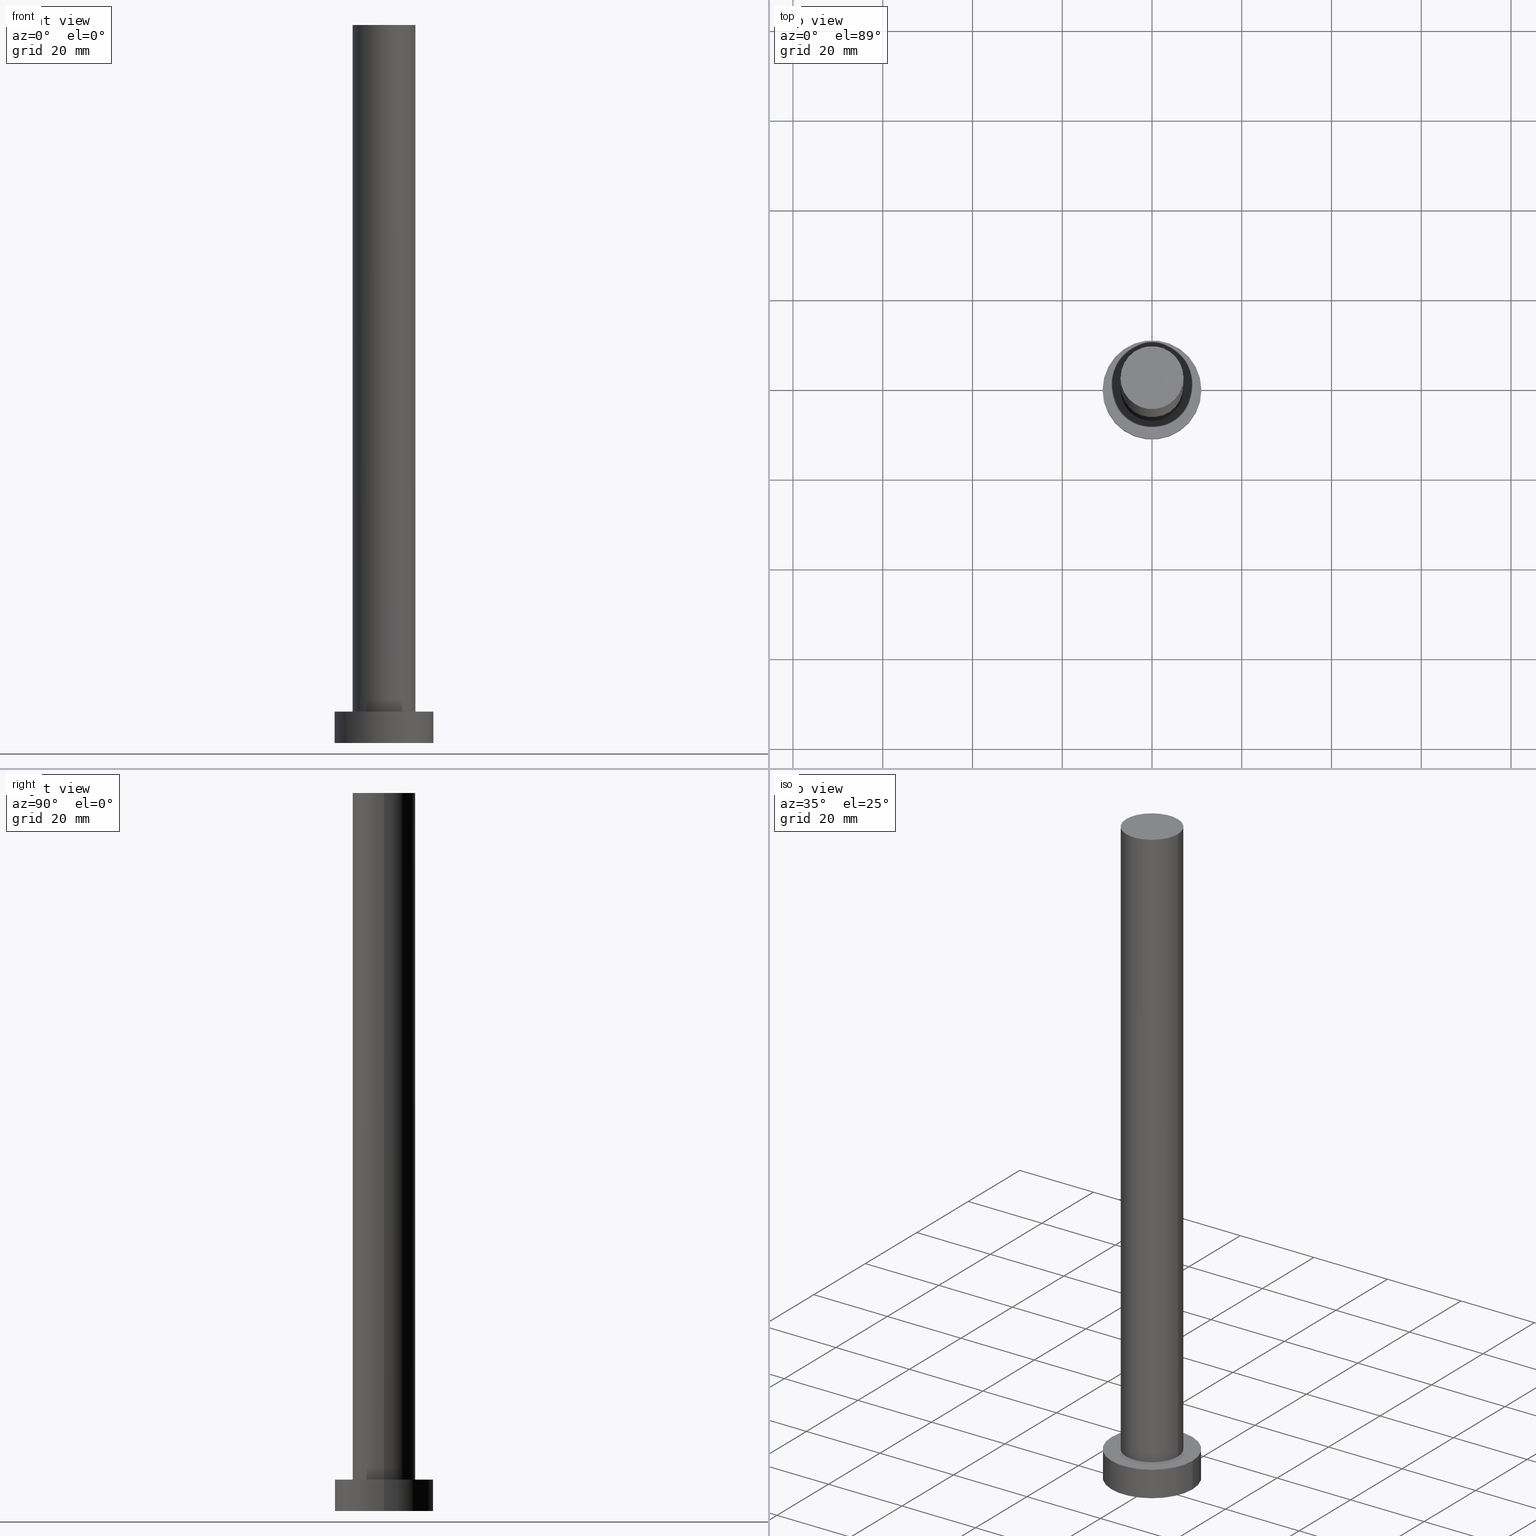
[diagram: canonical four-view strip — front | top / right | iso, engineering-drawing reading convention]
A machine part, canonical four-view strip (front | top / right | iso — engineering-drawing reading convention). The complete STEP part file that produces these views, byte-faithful:
ISO-10303-21;
HEADER;
FILE_DESCRIPTION (( 'STEP AP203' ),
    '1' );
FILE_NAME ('aa4a.STEP',
    '2023-02-13T08:55:26',
    ( '' ),
    ( '' ),
    'SwSTEP 2.0',
    'SolidWorks 2019',
    '' );
FILE_SCHEMA (( 'CONFIG_CONTROL_DESIGN' ));
ENDSEC;

DATA;
#1 = DATE_AND_TIME ( #110, #46 ) ;
#2 = DIRECTION ( 'NONE',  ( 1.000000000000000000, 0.000000000000000000, 0.000000000000000000 ) ) ;
#3 = VECTOR ( 'NONE', #16, 1000.000000000000000 ) ;
#4 = ADVANCED_FACE ( 'NONE', ( #176 ), #85, .T. ) ;
#5 = DATE_AND_TIME ( #169, #114 ) ;
#6 = ORIENTED_EDGE ( 'NONE', *, *, #9, .F. ) ;
#7 = EDGE_LOOP ( 'NONE', ( #249, #191, #45, #226 ) ) ;
#8 = AXIS2_PLACEMENT_3D ( 'NONE', #107, #182, #251 ) ;
#9 = EDGE_CURVE ( 'NONE', #246, #69, #33, .T. ) ;
#10 = PERSON_AND_ORGANIZATION ( #240, #56 ) ;
#11 = ORIENTED_EDGE ( 'NONE', *, *, #62, .F. ) ;
#12 = VERTEX_POINT ( 'NONE', #43 ) ;
#13 = DIRECTION ( 'NONE',  ( -1.000000000000000000, 0.000000000000000000, 0.000000000000000000 ) ) ;
#14 = CIRCLE ( 'NONE', #189, 11.00000000000000000 ) ;
#15 = PLANE ( 'NONE',  #66 ) ;
#16 = DIRECTION ( 'NONE',  ( -0.000000000000000000, -0.000000000000000000, -1.000000000000000000 ) ) ;
#17 = PERSON_AND_ORGANIZATION ( #240, #56 ) ;
#18 = FACE_OUTER_BOUND ( 'NONE', #203, .T. ) ;
#19 = DIRECTION ( 'NONE',  ( -1.000000000000000000, 0.000000000000000000, 0.000000000000000000 ) ) ;
#20 = ADVANCED_FACE ( 'NONE', ( #207 ), #30, .T. ) ;
#21 = DATE_AND_TIME ( #149, #230 ) ;
#22 = DIRECTION ( 'NONE',  ( 0.000000000000000000, 0.000000000000000000, 1.000000000000000000 ) ) ;
#23 = AXIS2_PLACEMENT_3D ( 'NONE', #118, #96, #219 ) ;
#24 = CARTESIAN_POINT ( 'NONE',  ( 0.000000000000000000, 0.000000000000000000, 7.000000000000000000 ) ) ;
#25 = VERTEX_POINT ( 'NONE', #214 ) ;
#26 = APPROVAL_PERSON_ORGANIZATION ( #172, #63, #139 ) ;
#27 = ORIENTED_EDGE ( 'NONE', *, *, #215, .F. ) ;
#28 = SECURITY_CLASSIFICATION ( '', '', #233 ) ;
#29 = EDGE_CURVE ( 'NONE', #88, #229, #158, .T. ) ;
#30 = CYLINDRICAL_SURFACE ( 'NONE', #8, 7.000000000000000888 ) ;
#31 = PERSON_AND_ORGANIZATION_ROLE ( 'design_supplier' ) ;
#32 = DIRECTION ( 'NONE',  ( 1.000000000000000000, 0.000000000000000000, -0.000000000000000000 ) ) ;
#33 = CIRCLE ( 'NONE', #167, 11.00000000000000000 ) ;
#34 = FACE_BOUND ( 'NONE', #141, .T. ) ;
#35 = CARTESIAN_POINT ( 'NONE',  ( 0.000000000000000000, 0.000000000000000000, 0.000000000000000000 ) ) ;
#36 = DIRECTION ( 'NONE',  ( 1.000000000000000000, 0.000000000000000000, 0.000000000000000000 ) ) ;
#37 = MECHANICAL_CONTEXT ( 'NONE', #161, 'mechanical' ) ;
#38 = DATE_AND_TIME ( #142, #199 ) ;
#39 = CARTESIAN_POINT ( 'NONE',  ( 0.000000000000000000, 0.000000000000000000, 160.0000000000000000 ) ) ;
#40 = CC_DESIGN_SECURITY_CLASSIFICATION ( #28, ( #248 ) ) ;
#41 = CARTESIAN_POINT ( 'NONE',  ( 0.000000000000000000, 0.000000000000000000, 0.000000000000000000 ) ) ;
#42 = ADVANCED_FACE ( 'NONE', ( #18 ), #179, .T. ) ;
#43 = CARTESIAN_POINT ( 'NONE',  ( 7.000000000000000888, 8.572527594031474176E-16, 7.000000000000000000 ) ) ;
#44 = CALENDAR_DATE ( 2023, 13, 2 ) ;
#45 = ORIENTED_EDGE ( 'NONE', *, *, #55, .T. ) ;
#46 = LOCAL_TIME ( 9, 55, 26.00000000000000000, #156 ) ;
#47 = CARTESIAN_POINT ( 'NONE',  ( 0.000000000000000000, 0.000000000000000000, 7.000000000000000000 ) ) ;
#48 = DIRECTION ( 'NONE',  ( 0.000000000000000000, 0.000000000000000000, 1.000000000000000000 ) ) ;
#49 = LINE ( 'NONE', #160, #86 ) ;
#50 = AXIS2_PLACEMENT_3D ( 'NONE', #39, #123, #228 ) ;
#51 = DIRECTION ( 'NONE',  ( 1.000000000000000000, 0.000000000000000000, -0.000000000000000000 ) ) ;
#52 = DIRECTION ( 'NONE',  ( 0.000000000000000000, 0.000000000000000000, 1.000000000000000000 ) ) ;
#53 = CARTESIAN_POINT ( 'NONE',  ( 7.000000000000000888, 8.572527594031474176E-16, 160.0000000000000000 ) ) ;
#54 = AXIS2_PLACEMENT_3D ( 'NONE', #157, #48, #36 ) ;
#55 = EDGE_CURVE ( 'NONE', #88, #25, #73, .T. ) ;
#56 = ORGANIZATION ( 'NEUR�EN�', 'NEUR�EN�', '' ) ;
#57 =( NAMED_UNIT ( * ) PLANE_ANGLE_UNIT ( ) SI_UNIT ( $, .RADIAN. ) );
#58 = AXIS2_PLACEMENT_3D ( 'NONE', #93, #211, #51 ) ;
#59 = APPROVAL_STATUS ( 'not_yet_approved' ) ;
#60 = ORIENTED_EDGE ( 'NONE', *, *, #137, .T. ) ;
#61 = ORIENTED_EDGE ( 'NONE', *, *, #180, .F. ) ;
#62 = EDGE_CURVE ( 'NONE', #83, #87, #212, .T. ) ;
#63 = APPROVAL ( #247, 'NEUR�EN�' ) ;
#64 = AXIS2_PLACEMENT_3D ( 'NONE', #47, #231, #13 ) ;
#65 = ORIENTED_EDGE ( 'NONE', *, *, #243, .T. ) ;
#66 = AXIS2_PLACEMENT_3D ( 'NONE', #197, #132, #32 ) ;
#67 = APPROVAL_STATUS ( 'not_yet_approved' ) ;
#68 = DIRECTION ( 'NONE',  ( 0.000000000000000000, 0.000000000000000000, 1.000000000000000000 ) ) ;
#69 = VERTEX_POINT ( 'NONE', #128 ) ;
#70 = CARTESIAN_POINT ( 'NONE',  ( 0.000000000000000000, 0.000000000000000000, 0.000000000000000000 ) ) ;
#71 = CIRCLE ( 'NONE', #236, 7.000000000000000888 ) ;
#72 = AXIS2_PLACEMENT_3D ( 'NONE', #70, #192, #109 ) ;
#73 = LINE ( 'NONE', #75, #3 ) ;
#74 = CARTESIAN_POINT ( 'NONE',  ( 0.000000000000000000, 0.000000000000000000, 7.000000000000000000 ) ) ;
#75 = CARTESIAN_POINT ( 'NONE',  ( -7.000000000000000888, 0.000000000000000000, 160.0000000000000000 ) ) ;
#76 = PERSON_AND_ORGANIZATION ( #240, #56 ) ;
#77 = DIRECTION ( 'NONE',  ( 1.000000000000000000, 0.000000000000000000, 0.000000000000000000 ) ) ;
#78 = PRODUCT ( 'aa4a', 'aa4a', '', ( #37 ) ) ;
#79 = APPROVAL ( #59, 'NEUR�EN�' ) ;
#80 =( LENGTH_UNIT ( ) NAMED_UNIT ( * ) SI_UNIT ( .MILLI., .METRE. ) );
#81 = EDGE_CURVE ( 'NONE', #229, #12, #49, .T. ) ;
#82 = VECTOR ( 'NONE', #95, 1000.000000000000000 ) ;
#83 = VERTEX_POINT ( 'NONE', #154 ) ;
#84 = APPROVAL_DATE_TIME ( #38, #79 ) ;
#85 = CYLINDRICAL_SURFACE ( 'NONE', #50, 7.000000000000000888 ) ;
#86 = VECTOR ( 'NONE', #194, 1000.000000000000000 ) ;
#87 = VERTEX_POINT ( 'NONE', #183 ) ;
#88 = VERTEX_POINT ( 'NONE', #232 ) ;
#89 = CARTESIAN_POINT ( 'NONE',  ( 0.000000000000000000, 0.000000000000000000, 160.0000000000000000 ) ) ;
#90 = DIRECTION ( 'NONE',  ( 1.000000000000000000, 0.000000000000000000, 0.000000000000000000 ) ) ;
#91 = EDGE_CURVE ( 'NONE', #12, #25, #71, .T. ) ;
#92 = PRODUCT_RELATED_PRODUCT_CATEGORY ( 'detail', '', ( #78 ) ) ;
#93 = CARTESIAN_POINT ( 'NONE',  ( 0.000000000000000000, 0.000000000000000000, 7.000000000000000000 ) ) ;
#94 = DIRECTION ( 'NONE',  ( 0.000000000000000000, 0.000000000000000000, 1.000000000000000000 ) ) ;
#95 = DIRECTION ( 'NONE',  ( -0.000000000000000000, -0.000000000000000000, -1.000000000000000000 ) ) ;
#96 = DIRECTION ( 'NONE',  ( 0.000000000000000000, 0.000000000000000000, 1.000000000000000000 ) ) ;
#97 = AXIS2_PLACEMENT_3D ( 'NONE', #193, #217, #254 ) ;
#98 =( GEOMETRIC_REPRESENTATION_CONTEXT ( 3 ) GLOBAL_UNCERTAINTY_ASSIGNED_CONTEXT ( ( #162 ) ) GLOBAL_UNIT_ASSIGNED_CONTEXT ( ( #80, #57, #136 ) ) REPRESENTATION_CONTEXT ( 'NONE', 'WORKASPACE' ) );
#99 = APPROVAL_DATE_TIME ( #21, #63 ) ;
#100 = APPROVAL_DATE_TIME ( #126, #116 ) ;
#101 = CIRCLE ( 'NONE', #54, 7.000000000000000888 ) ;
#102 = ORIENTED_EDGE ( 'NONE', *, *, #62, .T. ) ;
#103 = ORIENTED_EDGE ( 'NONE', *, *, #215, .T. ) ;
#104 = CIRCLE ( 'NONE', #213, 11.00000000000000000 ) ;
#105 = ORIENTED_EDGE ( 'NONE', *, *, #91, .T. ) ;
#106 = DIRECTION ( 'NONE',  ( 0.000000000000000000, 0.000000000000000000, 1.000000000000000000 ) ) ;
#107 = CARTESIAN_POINT ( 'NONE',  ( 0.000000000000000000, 0.000000000000000000, 160.0000000000000000 ) ) ;
#108 = CC_DESIGN_DATE_AND_TIME_ASSIGNMENT ( #1, #144, ( #28 ) ) ;
#109 = DIRECTION ( 'NONE',  ( 1.000000000000000000, 0.000000000000000000, -0.000000000000000000 ) ) ;
#110 = CALENDAR_DATE ( 2023, 13, 2 ) ;
#111 = DIRECTION ( 'NONE',  ( 0.000000000000000000, 0.000000000000000000, 1.000000000000000000 ) ) ;
#112 = DIRECTION ( 'NONE',  ( -0.000000000000000000, -0.000000000000000000, -1.000000000000000000 ) ) ;
#113 = AXIS2_PLACEMENT_3D ( 'NONE', #237, #52, #153 ) ;
#114 = LOCAL_TIME ( 9, 55, 26.00000000000000000, #168 ) ;
#115 = APPLICATION_PROTOCOL_DEFINITION ( 'international standard', 'config_control_design', 1994, #161 ) ;
#116 = APPROVAL ( #67, 'NEUR�EN�' ) ;
#117 = SHAPE_DEFINITION_REPRESENTATION ( #133, #159 ) ;
#118 = CARTESIAN_POINT ( 'NONE',  ( 0.000000000000000000, 0.000000000000000000, 0.000000000000000000 ) ) ;
#119 = COORDINATED_UNIVERSAL_TIME_OFFSET ( 1, 0, .AHEAD. ) ;
#120 = CC_DESIGN_PERSON_AND_ORGANIZATION_ASSIGNMENT ( #181, #31, ( #248 ) ) ;
#121 = ORIENTED_EDGE ( 'NONE', *, *, #81, .T. ) ;
#122 = VECTOR ( 'NONE', #112, 1000.000000000000000 ) ;
#123 = DIRECTION ( 'NONE',  ( -0.000000000000000000, -0.000000000000000000, -1.000000000000000000 ) ) ;
#124 = PERSON_AND_ORGANIZATION ( #240, #56 ) ;
#125 = ORIENTED_EDGE ( 'NONE', *, *, #9, .T. ) ;
#126 = DATE_AND_TIME ( #44, #220 ) ;
#127 = EDGE_LOOP ( 'NONE', ( #11, #65, #125, #61 ) ) ;
#128 = CARTESIAN_POINT ( 'NONE',  ( -11.00000000000000000, 0.000000000000000000, 0.000000000000000000 ) ) ;
#129 = FACE_OUTER_BOUND ( 'NONE', #190, .T. ) ;
#130 = CYLINDRICAL_SURFACE ( 'NONE', #174, 11.00000000000000000 ) ;
#131 = CC_DESIGN_APPROVAL ( #79, ( #248 ) ) ;
#132 = DIRECTION ( 'NONE',  ( 0.000000000000000000, 0.000000000000000000, 1.000000000000000000 ) ) ;
#133 = PRODUCT_DEFINITION_SHAPE ( 'NONE', 'NONE',  #140 ) ;
#134 = CARTESIAN_POINT ( 'NONE',  ( -11.00000000000000000, 0.000000000000000000, 7.000000000000000000 ) ) ;
#135 = LINE ( 'NONE', #241, #82 ) ;
#136 =( NAMED_UNIT ( * ) SI_UNIT ( $, .STERADIAN. ) SOLID_ANGLE_UNIT ( ) );
#137 = EDGE_CURVE ( 'NONE', #229, #88, #101, .T. ) ;
#138 = CLOSED_SHELL ( 'NONE', ( #20, #204, #42, #175, #218, #4, #188 ) ) ;
#139 = APPROVAL_ROLE ( '' ) ;
#140 = PRODUCT_DEFINITION ( 'NEZN�M�', '', #248, #239 ) ;
#141 = EDGE_LOOP ( 'NONE', ( #170, #143 ) ) ;
#142 = CALENDAR_DATE ( 2023, 13, 2 ) ;
#143 = ORIENTED_EDGE ( 'NONE', *, *, #91, .F. ) ;
#144 = DATE_TIME_ROLE ( 'classification_date' ) ;
#145 = APPROVAL_PERSON_ORGANIZATION ( #10, #116, #177 ) ;
#146 = EDGE_LOOP ( 'NONE', ( #201, #121, #105, #178 ) ) ;
#147 = DIRECTION ( 'NONE',  ( 1.000000000000000000, 0.000000000000000000, 0.000000000000000000 ) ) ;
#148 = EDGE_CURVE ( 'NONE', #25, #12, #163, .T. ) ;
#149 = CALENDAR_DATE ( 2023, 13, 2 ) ;
#150 = MANIFOLD_SOLID_BREP ( 'P�idat vysunut�m3', #138 ) ;
#151 = COORDINATED_UNIVERSAL_TIME_OFFSET ( 1, 0, .AHEAD. ) ;
#152 = AXIS2_PLACEMENT_3D ( 'NONE', #89, #94, #77 ) ;
#153 = DIRECTION ( 'NONE',  ( 1.000000000000000000, 0.000000000000000000, 0.000000000000000000 ) ) ;
#154 = CARTESIAN_POINT ( 'NONE',  ( 11.00000000000000000, 1.347111479062088405E-15, 7.000000000000000000 ) ) ;
#155 = FACE_OUTER_BOUND ( 'NONE', #227, .T. ) ;
#156 = COORDINATED_UNIVERSAL_TIME_OFFSET ( 1, 0, .AHEAD. ) ;
#157 = CARTESIAN_POINT ( 'NONE',  ( 0.000000000000000000, 0.000000000000000000, 160.0000000000000000 ) ) ;
#158 = CIRCLE ( 'NONE', #152, 7.000000000000000888 ) ;
#159 = ADVANCED_BREP_SHAPE_REPRESENTATION ( 'aa4a', ( #150, #23 ), #98 ) ;
#160 = CARTESIAN_POINT ( 'NONE',  ( 7.000000000000000888, 8.572527594031474176E-16, 160.0000000000000000 ) ) ;
#161 = APPLICATION_CONTEXT ( 'configuration controlled 3d designs of mechanical parts and assemblies' ) ;
#162 = UNCERTAINTY_MEASURE_WITH_UNIT (LENGTH_MEASURE( 1.000000000000000082E-05 ), #80, 'distance_accuracy_value', 'NONE');
#163 = CIRCLE ( 'NONE', #113, 7.000000000000000888 ) ;
#164 = APPROVAL_PERSON_ORGANIZATION ( #124, #79, #225 ) ;
#165 = CC_DESIGN_PERSON_AND_ORGANIZATION_ASSIGNMENT ( #17, #208, ( #248 ) ) ;
#166 = PERSON_AND_ORGANIZATION ( #240, #56 ) ;
#167 = AXIS2_PLACEMENT_3D ( 'NONE', #41, #68, #147 ) ;
#168 = COORDINATED_UNIVERSAL_TIME_OFFSET ( 1, 0, .AHEAD. ) ;
#169 = CALENDAR_DATE ( 2023, 13, 2 ) ;
#170 = ORIENTED_EDGE ( 'NONE', *, *, #148, .F. ) ;
#171 = ORIENTED_EDGE ( 'NONE', *, *, #243, .F. ) ;
#172 = PERSON_AND_ORGANIZATION ( #240, #56 ) ;
#173 = CC_DESIGN_PERSON_AND_ORGANIZATION_ASSIGNMENT ( #166, #222, ( #78 ) ) ;
#174 = AXIS2_PLACEMENT_3D ( 'NONE', #74, #216, #19 ) ;
#175 = ADVANCED_FACE ( 'NONE', ( #34, #129 ), #250, .T. ) ;
#176 = FACE_OUTER_BOUND ( 'NONE', #7, .T. ) ;
#177 = APPROVAL_ROLE ( '' ) ;
#178 = ORIENTED_EDGE ( 'NONE', *, *, #55, .F. ) ;
#179 = CYLINDRICAL_SURFACE ( 'NONE', #64, 11.00000000000000000 ) ;
#180 = EDGE_CURVE ( 'NONE', #87, #69, #238, .T. ) ;
#181 = PERSON_AND_ORGANIZATION ( #240, #56 ) ;
#182 = DIRECTION ( 'NONE',  ( -0.000000000000000000, -0.000000000000000000, -1.000000000000000000 ) ) ;
#183 = CARTESIAN_POINT ( 'NONE',  ( -11.00000000000000000, 0.000000000000000000, 7.000000000000000000 ) ) ;
#184 = DATE_TIME_ROLE ( 'creation_date' ) ;
#185 = PERSON_AND_ORGANIZATION ( #240, #56 ) ;
#186 = ORIENTED_EDGE ( 'NONE', *, *, #234, .T. ) ;
#187 = ORIENTED_EDGE ( 'NONE', *, *, #234, .F. ) ;
#188 = ADVANCED_FACE ( 'NONE', ( #196 ), #15, .T. ) ;
#189 = AXIS2_PLACEMENT_3D ( 'NONE', #35, #111, #210 ) ;
#190 = EDGE_LOOP ( 'NONE', ( #186, #102 ) ) ;
#191 = ORIENTED_EDGE ( 'NONE', *, *, #29, .F. ) ;
#192 = DIRECTION ( 'NONE',  ( 0.000000000000000000, 0.000000000000000000, 1.000000000000000000 ) ) ;
#193 = CARTESIAN_POINT ( 'NONE',  ( 0.000000000000000000, 0.000000000000000000, 7.000000000000000000 ) ) ;
#194 = DIRECTION ( 'NONE',  ( -0.000000000000000000, -0.000000000000000000, -1.000000000000000000 ) ) ;
#195 = CC_DESIGN_PERSON_AND_ORGANIZATION_ASSIGNMENT ( #185, #205, ( #140 ) ) ;
#196 = FACE_OUTER_BOUND ( 'NONE', #206, .T. ) ;
#197 = CARTESIAN_POINT ( 'NONE',  ( 0.000000000000000000, 0.000000000000000000, 160.0000000000000000 ) ) ;
#198 = CC_DESIGN_PERSON_AND_ORGANIZATION_ASSIGNMENT ( #76, #253, ( #28 ) ) ;
#199 = LOCAL_TIME ( 9, 55, 26.00000000000000000, #244 ) ;
#200 = CC_DESIGN_DATE_AND_TIME_ASSIGNMENT ( #5, #184, ( #140 ) ) ;
#201 = ORIENTED_EDGE ( 'NONE', *, *, #137, .F. ) ;
#202 = APPLICATION_CONTEXT ( 'configuration controlled 3d designs of mechanical parts and assemblies' ) ;
#203 = EDGE_LOOP ( 'NONE', ( #171, #187, #245, #103 ) ) ;
#204 = ADVANCED_FACE ( 'NONE', ( #252 ), #130, .T. ) ;
#205 = PERSON_AND_ORGANIZATION_ROLE ( 'creator' ) ;
#206 = EDGE_LOOP ( 'NONE', ( #209, #60 ) ) ;
#207 = FACE_OUTER_BOUND ( 'NONE', #146, .T. ) ;
#208 = PERSON_AND_ORGANIZATION_ROLE ( 'creator' ) ;
#209 = ORIENTED_EDGE ( 'NONE', *, *, #29, .T. ) ;
#210 = DIRECTION ( 'NONE',  ( 1.000000000000000000, 0.000000000000000000, 0.000000000000000000 ) ) ;
#211 = DIRECTION ( 'NONE',  ( 0.000000000000000000, 0.000000000000000000, 1.000000000000000000 ) ) ;
#212 = CIRCLE ( 'NONE', #97, 11.00000000000000000 ) ;
#213 = AXIS2_PLACEMENT_3D ( 'NONE', #24, #22, #2 ) ;
#214 = CARTESIAN_POINT ( 'NONE',  ( -7.000000000000000888, 0.000000000000000000, 7.000000000000000000 ) ) ;
#215 = EDGE_CURVE ( 'NONE', #69, #246, #14, .T. ) ;
#216 = DIRECTION ( 'NONE',  ( -0.000000000000000000, -0.000000000000000000, -1.000000000000000000 ) ) ;
#217 = DIRECTION ( 'NONE',  ( 0.000000000000000000, 0.000000000000000000, 1.000000000000000000 ) ) ;
#218 = ADVANCED_FACE ( 'NONE', ( #155 ), #235, .F. ) ;
#219 = DIRECTION ( 'NONE',  ( 1.000000000000000000, 0.000000000000000000, 0.000000000000000000 ) ) ;
#220 = LOCAL_TIME ( 9, 55, 26.00000000000000000, #151 ) ;
#221 = APPLICATION_PROTOCOL_DEFINITION ( 'international standard', 'config_control_design', 1994, #202 ) ;
#222 = PERSON_AND_ORGANIZATION_ROLE ( 'design_owner' ) ;
#223 = CARTESIAN_POINT ( 'NONE',  ( 11.00000000000000000, 1.347111479062088405E-15, 0.000000000000000000 ) ) ;
#224 = CC_DESIGN_APPROVAL ( #116, ( #140 ) ) ;
#225 = APPROVAL_ROLE ( '' ) ;
#226 = ORIENTED_EDGE ( 'NONE', *, *, #148, .T. ) ;
#227 = EDGE_LOOP ( 'NONE', ( #27, #6 ) ) ;
#228 = DIRECTION ( 'NONE',  ( -1.000000000000000000, 0.000000000000000000, 0.000000000000000000 ) ) ;
#229 = VERTEX_POINT ( 'NONE', #53 ) ;
#230 = LOCAL_TIME ( 9, 55, 26.00000000000000000, #119 ) ;
#231 = DIRECTION ( 'NONE',  ( -0.000000000000000000, -0.000000000000000000, -1.000000000000000000 ) ) ;
#232 = CARTESIAN_POINT ( 'NONE',  ( -7.000000000000000888, 0.000000000000000000, 160.0000000000000000 ) ) ;
#233 = SECURITY_CLASSIFICATION_LEVEL ( 'unclassified' ) ;
#234 = EDGE_CURVE ( 'NONE', #87, #83, #104, .T. ) ;
#235 = PLANE ( 'NONE',  #72 ) ;
#236 = AXIS2_PLACEMENT_3D ( 'NONE', #255, #106, #90 ) ;
#237 = CARTESIAN_POINT ( 'NONE',  ( 0.000000000000000000, 0.000000000000000000, 7.000000000000000000 ) ) ;
#238 = LINE ( 'NONE', #134, #122 ) ;
#239 = DESIGN_CONTEXT ( 'detailed design', #202, 'design' ) ;
#240 = PERSON ( 'NEUR�EN�', 'NEUR�EN�', 'NEUR�EN�', ('NEUR�EN�'), ('NEUR�EN�'), ('NEUR�EN�') ) ;
#241 = CARTESIAN_POINT ( 'NONE',  ( 11.00000000000000000, 1.347111479062088405E-15, 7.000000000000000000 ) ) ;
#242 = CC_DESIGN_APPROVAL ( #63, ( #28 ) ) ;
#243 = EDGE_CURVE ( 'NONE', #83, #246, #135, .T. ) ;
#244 = COORDINATED_UNIVERSAL_TIME_OFFSET ( 1, 0, .AHEAD. ) ;
#245 = ORIENTED_EDGE ( 'NONE', *, *, #180, .T. ) ;
#246 = VERTEX_POINT ( 'NONE', #223 ) ;
#247 = APPROVAL_STATUS ( 'not_yet_approved' ) ;
#248 = PRODUCT_DEFINITION_FORMATION_WITH_SPECIFIED_SOURCE ( 'LIBOVOLN�', '', #78, .NOT_KNOWN. ) ;
#249 = ORIENTED_EDGE ( 'NONE', *, *, #81, .F. ) ;
#250 = PLANE ( 'NONE',  #58 ) ;
#251 = DIRECTION ( 'NONE',  ( -1.000000000000000000, 0.000000000000000000, 0.000000000000000000 ) ) ;
#252 = FACE_OUTER_BOUND ( 'NONE', #127, .T. ) ;
#253 = PERSON_AND_ORGANIZATION_ROLE ( 'classification_officer' ) ;
#254 = DIRECTION ( 'NONE',  ( 1.000000000000000000, 0.000000000000000000, 0.000000000000000000 ) ) ;
#255 = CARTESIAN_POINT ( 'NONE',  ( 0.000000000000000000, 0.000000000000000000, 7.000000000000000000 ) ) ;
ENDSEC;
END-ISO-10303-21;
